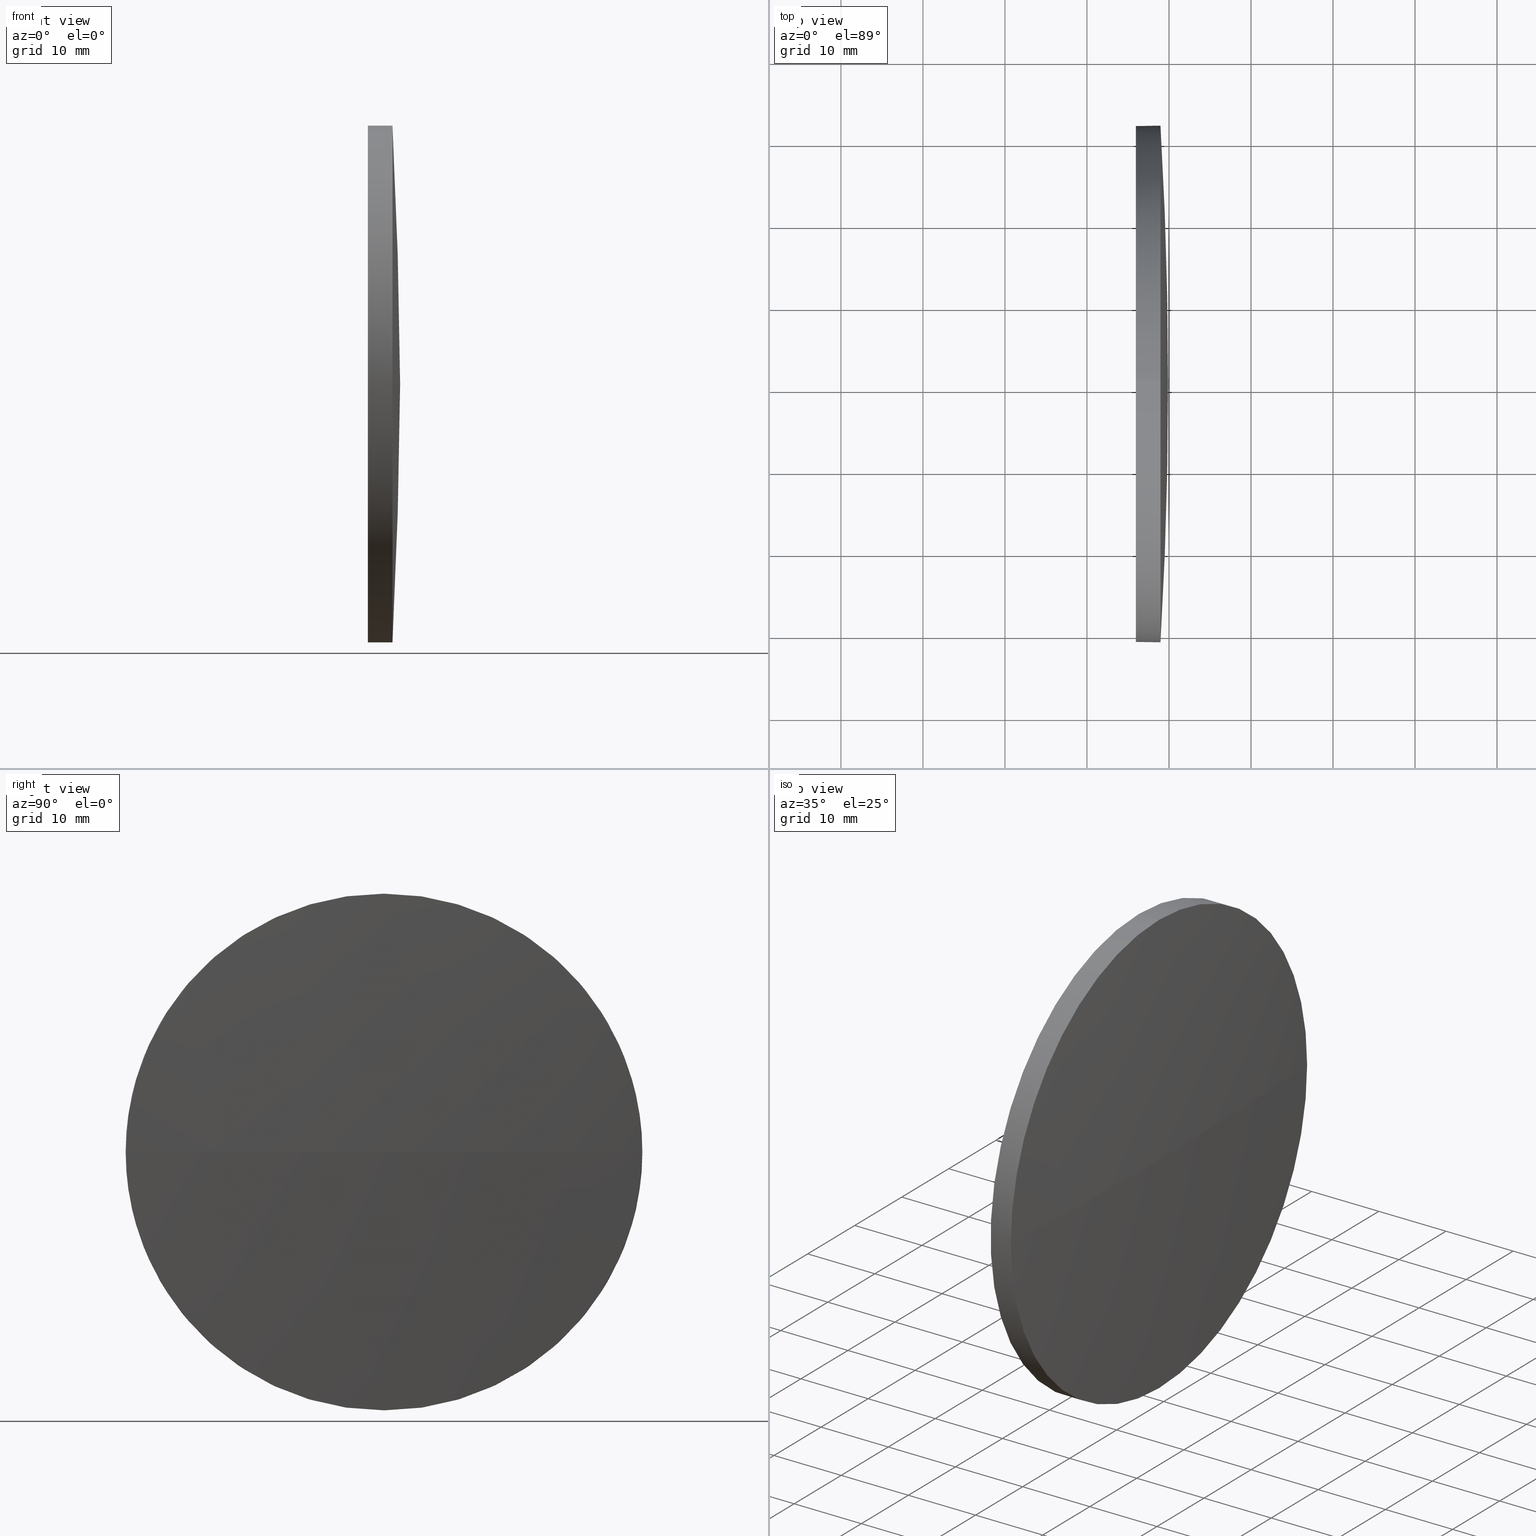
[diagram: canonical four-view strip — front | top / right | iso, engineering-drawing reading convention]
A machine part, canonical four-view strip (front | top / right | iso — engineering-drawing reading convention). The complete STEP part file that produces these views, byte-faithful:
ISO-10303-21;
HEADER;
FILE_DESCRIPTION (( 'STEP AP214' ),
    '1' );
FILE_NAME ('100162.STEP',
    '2019-05-17T01:14:23',
    ( '' ),
    ( '' ),
    'SwSTEP 2.0',
    'SolidWorks 2016',
    '' );
FILE_SCHEMA (( 'AUTOMOTIVE_DESIGN' ));
ENDSEC;

DATA;
#1 = ORIENTED_EDGE ( 'NONE', *, *, #38, .F. ) ;
#2 = FACE_OUTER_BOUND ( 'NONE', #22, .T. ) ;
#3 = FACE_OUTER_BOUND ( 'NONE', #62, .T. ) ;
#4 = EDGE_CURVE ( 'NONE', #143, #111, #71, .T. ) ;
#5 = PRESENTATION_STYLE_ASSIGNMENT (( #31 ) ) ;
#6 = DIRECTION ( 'NONE',  ( -1.000000000000000000, -0.0000000000000000000, -0.0000000000000000000 ) ) ;
#7 = PRODUCT_DEFINITION_FORMATION_WITH_SPECIFIED_SOURCE ( '�κ�', '', #157, .NOT_KNOWN. ) ;
#8 = CARTESIAN_POINT ( 'NONE',  ( 228.9653141997173700, 130.4671098528244200, 0.0000000000000000000 ) ) ;
#9 = CYLINDRICAL_SURFACE ( 'NONE', #135, 31.50000000000000000 ) ;
#10 = CLOSED_SHELL ( 'NONE', ( #175, #112, #159, #23, #176 ) ) ;
#11 = DIRECTION ( 'NONE',  ( -1.000000000000000000, -0.0000000000000000000, -0.0000000000000000000 ) ) ;
#12 = CARTESIAN_POINT ( 'NONE',  ( 228.9653141997173700, 130.4671098528244200, -31.50000000000000000 ) ) ;
#13 = EDGE_CURVE ( 'NONE', #80, #155, #161, .T. ) ;
#14 = VECTOR ( 'NONE', #11, 1000.000000000000000 ) ;
#15 =( NAMED_UNIT ( * ) SI_UNIT ( $, .STERADIAN. ) SOLID_ANGLE_UNIT ( ) );
#16 = ORIENTED_EDGE ( 'NONE', *, *, #4, .F. ) ;
#17 = ORIENTED_EDGE ( 'NONE', *, *, #91, .F. ) ;
#18 = ORIENTED_EDGE ( 'NONE', *, *, #166, .F. ) ;
#19 =( NAMED_UNIT ( * ) PLANE_ANGLE_UNIT ( ) SI_UNIT ( $, .RADIAN. ) );
#20 = AXIS2_PLACEMENT_3D ( 'NONE', #97, #178, #72 ) ;
#21 = AXIS2_PLACEMENT_3D ( 'NONE', #118, #179, #90 ) ;
#22 = EDGE_LOOP ( 'NONE', ( #158, #58, #35, #68 ) ) ;
#23 = ADVANCED_FACE ( 'NONE', ( #107 ), #186, .T. ) ;
#24 = DIRECTION ( 'NONE',  ( 0.0000000000000000000, -1.000000000000000000, -1.224646799147353200E-016 ) ) ;
#25 = DIRECTION ( 'NONE',  ( -1.000000000000000000, 0.0000000000000000000, 0.0000000000000000000 ) ) ;
#26 = DIRECTION ( 'NONE',  ( 0.0000000000000000000, -1.224646799147353200E-016, 1.000000000000000000 ) ) ;
#27 = DIRECTION ( 'NONE',  ( 0.0000000000000000000, 0.0000000000000000000, 1.000000000000000000 ) ) ;
#28 = AXIS2_PLACEMENT_3D ( 'NONE', #50, #82, #171 ) ;
#29 = EDGE_CURVE ( 'NONE', #155, #117, #103, .T. ) ;
#30 = PRODUCT_CONTEXT ( 'NONE', #61, 'mechanical' ) ;
#31 = SURFACE_STYLE_USAGE ( .BOTH. , #170 ) ;
#32 = STYLED_ITEM ( 'NONE', ( #5 ), #124 ) ;
#33 = CARTESIAN_POINT ( 'NONE',  ( 225.9653141997173400, 130.4671098528244200, 0.0000000000000000000 ) ) ;
#34 = CARTESIAN_POINT ( 'NONE',  ( -304.0374277357623800, 130.4671098528253900, 0.0000000000000000000 ) ) ;
#35 = ORIENTED_EDGE ( 'NONE', *, *, #177, .F. ) ;
#36 =( LENGTH_UNIT ( ) NAMED_UNIT ( * ) SI_UNIT ( .MILLI., .METRE. ) );
#37 = DIRECTION ( 'NONE',  ( 0.0000000000000000000, 0.0000000000000000000, 1.000000000000000000 ) ) ;
#38 = EDGE_CURVE ( 'NONE', #111, #138, #119, .T. ) ;
#39 = CARTESIAN_POINT ( 'NONE',  ( 228.9653141997173700, 130.4671098528244200, 0.0000000000000000000 ) ) ;
#40 = VECTOR ( 'NONE', #86, 1000.000000000000000 ) ;
#41 = ORIENTED_EDGE ( 'NONE', *, *, #38, .T. ) ;
#42 =( NAMED_UNIT ( * ) SI_UNIT ( $, .STERADIAN. ) SOLID_ANGLE_UNIT ( ) );
#43 = SPHERICAL_SURFACE ( 'NONE', #184, 533.9327419354798400 ) ;
#44 = CARTESIAN_POINT ( 'NONE',  ( 228.9653141997173400, 98.96710985282423700, 0.0000000000000000000 ) ) ;
#45 = SURFACE_STYLE_FILL_AREA ( #108 ) ;
#46 = PLANE ( 'NONE',  #60 ) ;
#47 = EDGE_CURVE ( 'NONE', #80, #183, #51, .T. ) ;
#48 = ORIENTED_EDGE ( 'NONE', *, *, #47, .F. ) ;
#49 = SHAPE_DEFINITION_REPRESENTATION ( #81, #124 ) ;
#50 = CARTESIAN_POINT ( 'NONE',  ( 0.0000000000000000000, 0.0000000000000000000, 0.0000000000000000000 ) ) ;
#51 = CIRCLE ( 'NONE', #109, 533.9327419354798400 ) ;
#52 = AXIS2_PLACEMENT_3D ( 'NONE', #33, #129, #164 ) ;
#53 = ORIENTED_EDGE ( 'NONE', *, *, #83, .F. ) ;
#54 = CARTESIAN_POINT ( 'NONE',  ( -304.0374277357623800, 130.4671098528253900, 0.0000000000000000000 ) ) ;
#55 = CARTESIAN_POINT ( 'NONE',  ( 217.9945825323866300, 130.4671098528244200, 31.50000000000000000 ) ) ;
#56 =( NAMED_UNIT ( * ) PLANE_ANGLE_UNIT ( ) SI_UNIT ( $, .RADIAN. ) );
#57 = CARTESIAN_POINT ( 'NONE',  ( 228.9653141997173700, 130.4671098528244200, 31.50000000000000000 ) ) ;
#58 = ORIENTED_EDGE ( 'NONE', *, *, #47, .T. ) ;
#59 = AXIS2_PLACEMENT_3D ( 'NONE', #63, #27, #168 ) ;
#60 = AXIS2_PLACEMENT_3D ( 'NONE', #127, #173, #93 ) ;
#61 = APPLICATION_CONTEXT ( 'automotive_design' ) ;
#62 = EDGE_LOOP ( 'NONE', ( #128, #74, #1, #16, #151 ) ) ;
#63 = CARTESIAN_POINT ( 'NONE',  ( -304.0374277357623800, 130.4671098528253900, 0.0000000000000000000 ) ) ;
#64 = STYLED_ITEM ( 'NONE', ( #110 ), #160 ) ;
#65 = CARTESIAN_POINT ( 'NONE',  ( 225.9653141997173400, 130.4671098528244200, -31.50000000000000000 ) ) ;
#66 = FILL_AREA_STYLE_COLOUR ( '', #98 ) ;
#67 =( LENGTH_UNIT ( ) NAMED_UNIT ( * ) SI_UNIT ( .MILLI., .METRE. ) );
#68 = ORIENTED_EDGE ( 'NONE', *, *, #29, .F. ) ;
#69 = UNCERTAINTY_MEASURE_WITH_UNIT (LENGTH_MEASURE( 1.000000000000000100E-005 ), #156, 'distance_accuracy_value', 'NONE');
#70 = PRESENTATION_LAYER_ASSIGNMENT (  '', '', ( #64 ) ) ;
#71 = LINE ( 'NONE', #55, #14 ) ;
#72 = DIRECTION ( 'NONE',  ( 0.0000000000000000000, 0.0000000000000000000, 1.000000000000000000 ) ) ;
#73 = CIRCLE ( 'NONE', #163, 31.50000000000000000 ) ;
#74 = ORIENTED_EDGE ( 'NONE', *, *, #166, .T. ) ;
#75 = FILL_AREA_STYLE ('',( #146 ) ) ;
#76 = SURFACE_STYLE_USAGE ( .BOTH. , #78 ) ;
#77 = FACE_OUTER_BOUND ( 'NONE', #84, .T. ) ;
#78 = SURFACE_SIDE_STYLE ('',( #123 ) ) ;
#79 = EDGE_LOOP ( 'NONE', ( #41, #85 ) ) ;
#80 = VERTEX_POINT ( 'NONE', #141 ) ;
#81 = PRODUCT_DEFINITION_SHAPE ( 'NONE', 'NONE',  #150 ) ;
#82 = DIRECTION ( 'NONE',  ( 0.0000000000000000000, 0.0000000000000000000, 1.000000000000000000 ) ) ;
#83 = EDGE_CURVE ( 'NONE', #143, #155, #145, .T. ) ;
#84 = EDGE_LOOP ( 'NONE', ( #48, #125, #53, #17 ) ) ;
#85 = ORIENTED_EDGE ( 'NONE', *, *, #152, .T. ) ;
#86 = DIRECTION ( 'NONE',  ( -1.000000000000000000, -0.0000000000000000000, -0.0000000000000000000 ) ) ;
#87 = PRODUCT_RELATED_PRODUCT_CATEGORY ( 'part', '', ( #157 ) ) ;
#88 = DIRECTION ( 'NONE',  ( -1.000000000000000000, -0.0000000000000000000, -0.0000000000000000000 ) ) ;
#89 = UNCERTAINTY_MEASURE_WITH_UNIT (LENGTH_MEASURE( 1.000000000000000100E-005 ), #67, 'distance_accuracy_value', 'NONE');
#90 = DIRECTION ( 'NONE',  ( 0.0000000000000000000, 0.0000000000000000000, 1.000000000000000000 ) ) ;
#91 = EDGE_CURVE ( 'NONE', #183, #143, #153, .T. ) ;
#92 = DIRECTION ( 'NONE',  ( 0.0000000000000000000, 0.0000000000000000000, 1.000000000000000000 ) ) ;
#93 = DIRECTION ( 'NONE',  ( 0.0000000000000000000, 0.0000000000000000000, -1.000000000000000000 ) ) ;
#94 =( NAMED_UNIT ( * ) PLANE_ANGLE_UNIT ( ) SI_UNIT ( $, .RADIAN. ) );
#95 = AXIS2_PLACEMENT_3D ( 'NONE', #8, #6, #116 ) ;
#96 = DIRECTION ( 'NONE',  ( 0.0000000000000000000, 0.0000000000000000000, -1.000000000000000000 ) ) ;
#97 = CARTESIAN_POINT ( 'NONE',  ( 217.9945825323866300, 130.4671098528244200, 0.0000000000000000000 ) ) ;
#98 = COLOUR_RGB ( '',1.000000000000000000, 1.000000000000000000, 1.000000000000000000 ) ;
#99 = CARTESIAN_POINT ( 'NONE',  ( 217.9945825323866300, 130.4671098528244200, 0.0000000000000000000 ) ) ;
#100 = UNCERTAINTY_MEASURE_WITH_UNIT (LENGTH_MEASURE( 1.000000000000000100E-005 ), #36, 'distance_accuracy_value', 'NONE');
#101 = DIRECTION ( 'NONE',  ( 0.0000000000000000000, 0.0000000000000000000, 1.000000000000000000 ) ) ;
#102 = CARTESIAN_POINT ( 'NONE',  ( 217.9945825323866300, 130.4671098528244200, -31.50000000000000000 ) ) ;
#103 = CIRCLE ( 'NONE', #95, 31.50000000000000000 ) ;
#104 = DIRECTION ( 'NONE',  ( -1.000000000000000000, -0.0000000000000000000, -0.0000000000000000000 ) ) ;
#105 = FACE_OUTER_BOUND ( 'NONE', #79, .T. ) ;
#106 = ORIENTED_EDGE ( 'NONE', *, *, #91, .T. ) ;
#107 = FACE_OUTER_BOUND ( 'NONE', #121, .T. ) ;
#108 = FILL_AREA_STYLE ('',( #66 ) ) ;
#109 = AXIS2_PLACEMENT_3D ( 'NONE', #54, #96, #25 ) ;
#110 = PRESENTATION_STYLE_ASSIGNMENT (( #76 ) ) ;
#111 = VERTEX_POINT ( 'NONE', #180 ) ;
#112 = ADVANCED_FACE ( 'NONE', ( #77 ), #43, .T. ) ;
#113 =( NAMED_UNIT ( * ) SI_UNIT ( $, .STERADIAN. ) SOLID_ANGLE_UNIT ( ) );
#114 = SPHERICAL_SURFACE ( 'NONE', #59, 533.9327419354798400 ) ;
#115 = ORIENTED_EDGE ( 'NONE', *, *, #177, .T. ) ;
#116 = DIRECTION ( 'NONE',  ( 0.0000000000000000000, 0.0000000000000000000, 1.000000000000000000 ) ) ;
#117 = VERTEX_POINT ( 'NONE', #12 ) ;
#118 = CARTESIAN_POINT ( 'NONE',  ( 225.9653141997173400, 130.4671098528244200, 0.0000000000000000000 ) ) ;
#119 = CIRCLE ( 'NONE', #52, 31.50000000000000000 ) ;
#120 = CARTESIAN_POINT ( 'NONE',  ( -304.0374277357623800, 130.4671098528253900, 0.0000000000000000000 ) ) ;
#121 = EDGE_LOOP ( 'NONE', ( #18, #115, #106, #162, #148 ) ) ;
#122 =( GEOMETRIC_REPRESENTATION_CONTEXT ( 3 ) GLOBAL_UNCERTAINTY_ASSIGNED_CONTEXT ( ( #100 ) ) GLOBAL_UNIT_ASSIGNED_CONTEXT ( ( #36, #56, #15 ) ) REPRESENTATION_CONTEXT ( 'NONE', 'WORKASPACE' ) );
#123 = SURFACE_STYLE_FILL_AREA ( #75 ) ;
#124 = ADVANCED_BREP_SHAPE_REPRESENTATION ( '100162', ( #160, #28 ), #172 ) ;
#125 = ORIENTED_EDGE ( 'NONE', *, *, #13, .T. ) ;
#126 = APPLICATION_CONTEXT ( 'automotive_design' ) ;
#127 = CARTESIAN_POINT ( 'NONE',  ( 225.9653141997173400, 130.4671098528244200, 0.0000000000000000000 ) ) ;
#128 = ORIENTED_EDGE ( 'NONE', *, *, #29, .T. ) ;
#129 = DIRECTION ( 'NONE',  ( -1.000000000000000000, -0.0000000000000000000, -0.0000000000000000000 ) ) ;
#130 = DIRECTION ( 'NONE',  ( -1.000000000000000000, -0.0000000000000000000, -0.0000000000000000000 ) ) ;
#131 = AXIS2_PLACEMENT_3D ( 'NONE', #132, #104, #101 ) ;
#132 = CARTESIAN_POINT ( 'NONE',  ( 228.9653141997173700, 130.4671098528244200, 0.0000000000000000000 ) ) ;
#133 = DIRECTION ( 'NONE',  ( 0.0000000000000000000, 0.0000000000000000000, 1.000000000000000000 ) ) ;
#134 = APPLICATION_PROTOCOL_DEFINITION ( 'draft international standard', 'automotive_design', 1998, #126 ) ;
#135 = AXIS2_PLACEMENT_3D ( 'NONE', #99, #88, #165 ) ;
#136 = CARTESIAN_POINT ( 'NONE',  ( 228.9653141997173700, 130.4671098528244200, 0.0000000000000000000 ) ) ;
#137 = PRESENTATION_LAYER_ASSIGNMENT (  '', '', ( #32 ) ) ;
#138 = VERTEX_POINT ( 'NONE', #65 ) ;
#139 = AXIS2_PLACEMENT_3D ( 'NONE', #39, #130, #92 ) ;
#140 = CIRCLE ( 'NONE', #21, 31.50000000000000000 ) ;
#141 = CARTESIAN_POINT ( 'NONE',  ( 229.8953141997174300, 130.4671098528253600, 0.0000000000000000000 ) ) ;
#142 = COLOUR_RGB ( '',1.000000000000000000, 1.000000000000000000, 1.000000000000000000 ) ;
#143 = VERTEX_POINT ( 'NONE', #57 ) ;
#144 = DIRECTION ( 'NONE',  ( 0.0000000000000000000, -1.000000000000000000, 0.0000000000000000000 ) ) ;
#145 = CIRCLE ( 'NONE', #139, 31.50000000000000000 ) ;
#146 = FILL_AREA_STYLE_COLOUR ( '', #142 ) ;
#147 = AXIS2_PLACEMENT_3D ( 'NONE', #34, #26, #24 ) ;
#148 = ORIENTED_EDGE ( 'NONE', *, *, #152, .F. ) ;
#149 = LINE ( 'NONE', #102, #40 ) ;
#150 = PRODUCT_DEFINITION ( 'δ֪', '', #7, #167 ) ;
#151 = ORIENTED_EDGE ( 'NONE', *, *, #83, .T. ) ;
#152 = EDGE_CURVE ( 'NONE', #138, #111, #140, .T. ) ;
#153 = CIRCLE ( 'NONE', #131, 31.50000000000000000 ) ;
#154 = APPLICATION_PROTOCOL_DEFINITION ( 'draft international standard', 'automotive_design', 1998, #61 ) ;
#155 = VERTEX_POINT ( 'NONE', #169 ) ;
#156 =( LENGTH_UNIT ( ) NAMED_UNIT ( * ) SI_UNIT ( .MILLI., .METRE. ) );
#157 = PRODUCT ( '100162', '100162', '', ( #30 ) ) ;
#158 = ORIENTED_EDGE ( 'NONE', *, *, #13, .F. ) ;
#159 = ADVANCED_FACE ( 'NONE', ( #2 ), #114, .T. ) ;
#160 = MANIFOLD_SOLID_BREP ( '��ת1', #10 ) ;
#161 = CIRCLE ( 'NONE', #147, 533.9327419354798400 ) ;
#162 = ORIENTED_EDGE ( 'NONE', *, *, #4, .T. ) ;
#163 = AXIS2_PLACEMENT_3D ( 'NONE', #136, #185, #133 ) ;
#164 = DIRECTION ( 'NONE',  ( 0.0000000000000000000, 0.0000000000000000000, 1.000000000000000000 ) ) ;
#165 = DIRECTION ( 'NONE',  ( 0.0000000000000000000, 0.0000000000000000000, 1.000000000000000000 ) ) ;
#166 = EDGE_CURVE ( 'NONE', #117, #138, #149, .T. ) ;
#167 = PRODUCT_DEFINITION_CONTEXT ( 'detailed design', #126, 'design' ) ;
#168 = DIRECTION ( 'NONE',  ( 0.0000000000000000000, -1.000000000000000000, 0.0000000000000000000 ) ) ;
#169 = CARTESIAN_POINT ( 'NONE',  ( 228.9653141997173400, 161.9671098528255900, 3.857637417314183200E-015 ) ) ;
#170 = SURFACE_SIDE_STYLE ('',( #45 ) ) ;
#171 = DIRECTION ( 'NONE',  ( 1.000000000000000000, 0.0000000000000000000, 0.0000000000000000000 ) ) ;
#172 =( GEOMETRIC_REPRESENTATION_CONTEXT ( 3 ) GLOBAL_UNCERTAINTY_ASSIGNED_CONTEXT ( ( #69 ) ) GLOBAL_UNIT_ASSIGNED_CONTEXT ( ( #156, #19, #42 ) ) REPRESENTATION_CONTEXT ( 'NONE', 'WORKASPACE' ) );
#173 = DIRECTION ( 'NONE',  ( 1.000000000000000000, 0.0000000000000000000, 0.0000000000000000000 ) ) ;
#174 = MECHANICAL_DESIGN_GEOMETRIC_PRESENTATION_REPRESENTATION (  '', ( #32 ), #182 ) ;
#175 = ADVANCED_FACE ( 'NONE', ( #3 ), #9, .T. ) ;
#176 = ADVANCED_FACE ( 'NONE', ( #105 ), #46, .F. ) ;
#177 = EDGE_CURVE ( 'NONE', #117, #183, #73, .T. ) ;
#178 = DIRECTION ( 'NONE',  ( -1.000000000000000000, -0.0000000000000000000, -0.0000000000000000000 ) ) ;
#179 = DIRECTION ( 'NONE',  ( -1.000000000000000000, -0.0000000000000000000, -0.0000000000000000000 ) ) ;
#180 = CARTESIAN_POINT ( 'NONE',  ( 225.9653141997173400, 130.4671098528244200, 31.50000000000000000 ) ) ;
#181 = MECHANICAL_DESIGN_GEOMETRIC_PRESENTATION_REPRESENTATION (  '', ( #64 ), #122 ) ;
#182 =( GEOMETRIC_REPRESENTATION_CONTEXT ( 3 ) GLOBAL_UNCERTAINTY_ASSIGNED_CONTEXT ( ( #89 ) ) GLOBAL_UNIT_ASSIGNED_CONTEXT ( ( #67, #94, #113 ) ) REPRESENTATION_CONTEXT ( 'NONE', 'WORKASPACE' ) );
#183 = VERTEX_POINT ( 'NONE', #44 ) ;
#184 = AXIS2_PLACEMENT_3D ( 'NONE', #120, #37, #144 ) ;
#185 = DIRECTION ( 'NONE',  ( -1.000000000000000000, -0.0000000000000000000, -0.0000000000000000000 ) ) ;
#186 = CYLINDRICAL_SURFACE ( 'NONE', #20, 31.50000000000000000 ) ;
ENDSEC;
END-ISO-10303-21;
